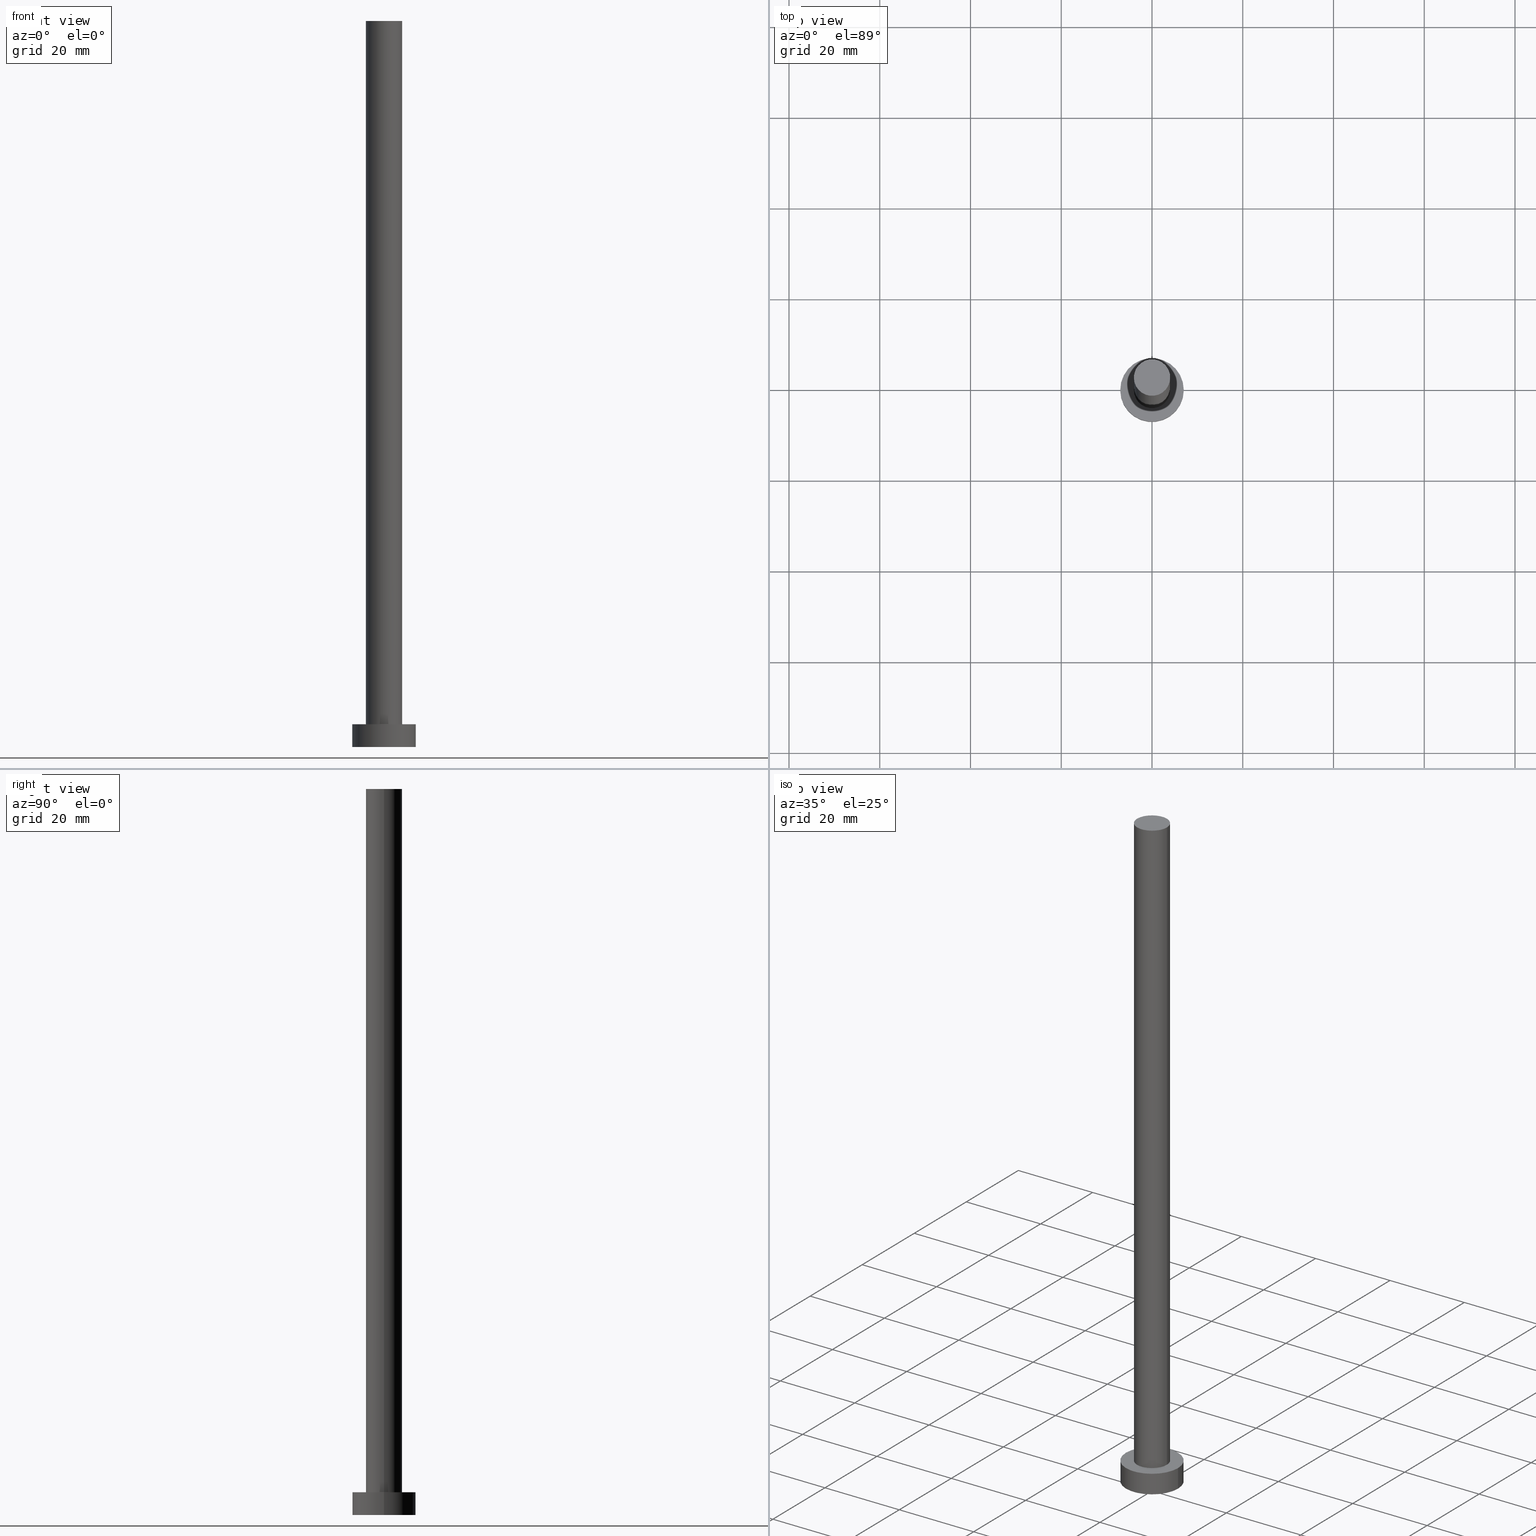
[diagram: canonical four-view strip — front | top / right | iso, engineering-drawing reading convention]
A machine part, canonical four-view strip (front | top / right | iso — engineering-drawing reading convention). The complete STEP part file that produces these views, byte-faithful:
ISO-10303-21;
HEADER;
FILE_DESCRIPTION (( 'STEP AP203' ),
    '1' );
FILE_NAME ('5fa9.STEP',
    '2023-02-13T13:33:21',
    ( '' ),
    ( '' ),
    'SwSTEP 2.0',
    'SolidWorks 2019',
    '' );
FILE_SCHEMA (( 'CONFIG_CONTROL_DESIGN' ));
ENDSEC;

DATA;
#1 = EDGE_CURVE ( 'NONE', #162, #129, #86, .T. ) ;
#2 = PERSON_AND_ORGANIZATION_ROLE ( 'design_owner' ) ;
#3 = ORIENTED_EDGE ( 'NONE', *, *, #160, .F. ) ;
#4 = ORIENTED_EDGE ( 'NONE', *, *, #1, .T. ) ;
#5 = CYLINDRICAL_SURFACE ( 'NONE', #12, 7.000000000000000000 ) ;
#6 = DIRECTION ( 'NONE',  ( 0.000000000000000000, 0.000000000000000000, 1.000000000000000000 ) ) ;
#7 = COORDINATED_UNIVERSAL_TIME_OFFSET ( 1, 0, .AHEAD. ) ;
#8 = DIRECTION ( 'NONE',  ( 0.000000000000000000, 0.000000000000000000, 1.000000000000000000 ) ) ;
#9 = EDGE_CURVE ( 'NONE', #182, #226, #143, .T. ) ;
#10 = DIRECTION ( 'NONE',  ( -1.000000000000000000, 0.000000000000000000, 0.000000000000000000 ) ) ;
#11 = PLANE ( 'NONE',  #140 ) ;
#12 = AXIS2_PLACEMENT_3D ( 'NONE', #90, #28, #10 ) ;
#13 = ORGANIZATION ( 'NEUR�EN�', 'NEUR�EN�', '' ) ;
#14 = ADVANCED_FACE ( 'NONE', ( #183 ), #5, .T. ) ;
#15 = CARTESIAN_POINT ( 'NONE',  ( -7.000000000000000000, 0.000000000000000000, 5.000000000000000000 ) ) ;
#16 = ADVANCED_FACE ( 'NONE', ( #167 ), #116, .T. ) ;
#17 = PERSON_AND_ORGANIZATION ( #99, #13 ) ;
#18 = AXIS2_PLACEMENT_3D ( 'NONE', #164, #6, #91 ) ;
#19 = EDGE_CURVE ( 'NONE', #226, #199, #69, .T. ) ;
#20 = ORIENTED_EDGE ( 'NONE', *, *, #19, .T. ) ;
#21 = ORIENTED_EDGE ( 'NONE', *, *, #172, .T. ) ;
#22 = CALENDAR_DATE ( 2023, 13, 2 ) ;
#23 = PRODUCT_DEFINITION_FORMATION_WITH_SPECIFIED_SOURCE ( 'LIBOVOLN�', '', #94, .NOT_KNOWN. ) ;
#24 = DATE_AND_TIME ( #22, #177 ) ;
#25 = ORIENTED_EDGE ( 'NONE', *, *, #178, .F. ) ;
#26 = EDGE_LOOP ( 'NONE', ( #131, #127, #66, #67 ) ) ;
#27 = APPROVAL_PERSON_ORGANIZATION ( #68, #191, #128 ) ;
#28 = DIRECTION ( 'NONE',  ( -0.000000000000000000, -0.000000000000000000, -1.000000000000000000 ) ) ;
#29 =( NAMED_UNIT ( * ) PLANE_ANGLE_UNIT ( ) SI_UNIT ( $, .RADIAN. ) );
#30 = DIRECTION ( 'NONE',  ( 1.000000000000000000, 0.000000000000000000, 0.000000000000000000 ) ) ;
#31 = DIRECTION ( 'NONE',  ( -0.000000000000000000, -0.000000000000000000, -1.000000000000000000 ) ) ;
#32 = FACE_OUTER_BOUND ( 'NONE', #243, .T. ) ;
#33 = LOCAL_TIME ( 14, 33, 21.00000000000000000, #122 ) ;
#34 = CARTESIAN_POINT ( 'NONE',  ( 0.000000000000000000, 0.000000000000000000, 160.0000000000000000 ) ) ;
#35 = EDGE_CURVE ( 'NONE', #129, #162, #40, .T. ) ;
#36 = CC_DESIGN_PERSON_AND_ORGANIZATION_ASSIGNMENT ( #17, #253, ( #23 ) ) ;
#37 = CC_DESIGN_PERSON_AND_ORGANIZATION_ASSIGNMENT ( #85, #237, ( #51 ) ) ;
#38 = ORIENTED_EDGE ( 'NONE', *, *, #101, .F. ) ;
#39 = APPLICATION_PROTOCOL_DEFINITION ( 'international standard', 'config_control_design', 1994, #60 ) ;
#40 = CIRCLE ( 'NONE', #198, 7.000000000000000000 ) ;
#41 = EDGE_LOOP ( 'NONE', ( #107, #196 ) ) ;
#42 = APPROVAL ( #255, 'NEUR�EN�' ) ;
#43 = ORIENTED_EDGE ( 'NONE', *, *, #251, .T. ) ;
#44 = APPROVAL_DATE_TIME ( #24, #191 ) ;
#45 = ORIENTED_EDGE ( 'NONE', *, *, #214, .T. ) ;
#46 = DIRECTION ( 'NONE',  ( 1.000000000000000000, 0.000000000000000000, 0.000000000000000000 ) ) ;
#47 = EDGE_CURVE ( 'NONE', #64, #199, #95, .T. ) ;
#48 = DIRECTION ( 'NONE',  ( -1.000000000000000000, 0.000000000000000000, 0.000000000000000000 ) ) ;
#49 = DIRECTION ( 'NONE',  ( 1.000000000000000000, 0.000000000000000000, -0.000000000000000000 ) ) ;
#50 = AXIS2_PLACEMENT_3D ( 'NONE', #147, #204, #118 ) ;
#51 = SECURITY_CLASSIFICATION ( '', '', #217 ) ;
#52 = CYLINDRICAL_SURFACE ( 'NONE', #124, 7.000000000000000000 ) ;
#53 = DATE_AND_TIME ( #165, #80 ) ;
#54 = CARTESIAN_POINT ( 'NONE',  ( 0.000000000000000000, 0.000000000000000000, 5.000000000000000000 ) ) ;
#55 = CYLINDRICAL_SURFACE ( 'NONE', #63, 4.000000000000000000 ) ;
#56 = MANIFOLD_SOLID_BREP ( 'P�idat vysunut�m3', #169 ) ;
#57 = CIRCLE ( 'NONE', #212, 4.000000000000000000 ) ;
#58 = CARTESIAN_POINT ( 'NONE',  ( 7.000000000000000000, 8.572527594031473190E-16, 0.000000000000000000 ) ) ;
#59 = APPROVAL_DATE_TIME ( #175, #146 ) ;
#60 = APPLICATION_CONTEXT ( 'configuration controlled 3d designs of mechanical parts and assemblies' ) ;
#61 = LOCAL_TIME ( 14, 33, 21.00000000000000000, #123 ) ;
#62 = PERSON_AND_ORGANIZATION ( #99, #13 ) ;
#63 = AXIS2_PLACEMENT_3D ( 'NONE', #34, #233, #234 ) ;
#64 = VERTEX_POINT ( 'NONE', #163 ) ;
#65 = APPROVAL_STATUS ( 'not_yet_approved' ) ;
#66 = ORIENTED_EDGE ( 'NONE', *, *, #105, .T. ) ;
#67 = ORIENTED_EDGE ( 'NONE', *, *, #35, .T. ) ;
#68 = PERSON_AND_ORGANIZATION ( #99, #13 ) ;
#69 = CIRCLE ( 'NONE', #50, 4.000000000000000000 ) ;
#70 = LOCAL_TIME ( 14, 33, 21.00000000000000000, #82 ) ;
#71 = ORIENTED_EDGE ( 'NONE', *, *, #178, .T. ) ;
#72 = LINE ( 'NONE', #208, #134 ) ;
#73 = DIRECTION ( 'NONE',  ( 1.000000000000000000, 0.000000000000000000, -0.000000000000000000 ) ) ;
#74 = DIRECTION ( 'NONE',  ( -1.000000000000000000, 0.000000000000000000, 0.000000000000000000 ) ) ;
#75 = FACE_OUTER_BOUND ( 'NONE', #126, .T. ) ;
#76 = DIRECTION ( 'NONE',  ( 1.000000000000000000, 0.000000000000000000, -0.000000000000000000 ) ) ;
#77 = DIRECTION ( 'NONE',  ( 1.000000000000000000, 0.000000000000000000, 0.000000000000000000 ) ) ;
#78 = FACE_BOUND ( 'NONE', #220, .T. ) ;
#79 = APPROVAL_DATE_TIME ( #218, #42 ) ;
#80 = LOCAL_TIME ( 14, 33, 21.00000000000000000, #7 ) ;
#81 = CARTESIAN_POINT ( 'NONE',  ( -7.000000000000000000, 0.000000000000000000, 0.000000000000000000 ) ) ;
#82 = COORDINATED_UNIVERSAL_TIME_OFFSET ( 1, 0, .AHEAD. ) ;
#83 = ADVANCED_FACE ( 'NONE', ( #75 ), #245, .T. ) ;
#84 = VECTOR ( 'NONE', #201, 1000.000000000000000 ) ;
#85 = PERSON_AND_ORGANIZATION ( #99, #13 ) ;
#86 = CIRCLE ( 'NONE', #203, 7.000000000000000000 ) ;
#87 = APPROVAL_ROLE ( '' ) ;
#88 = ORIENTED_EDGE ( 'NONE', *, *, #160, .T. ) ;
#89 = DIRECTION ( 'NONE',  ( 1.000000000000000000, 0.000000000000000000, 0.000000000000000000 ) ) ;
#90 = CARTESIAN_POINT ( 'NONE',  ( 0.000000000000000000, 0.000000000000000000, 5.000000000000000000 ) ) ;
#91 = DIRECTION ( 'NONE',  ( 1.000000000000000000, 0.000000000000000000, 0.000000000000000000 ) ) ;
#92 = ADVANCED_FACE ( 'NONE', ( #151 ), #52, .T. ) ;
#93 = CARTESIAN_POINT ( 'NONE',  ( 0.000000000000000000, 0.000000000000000000, 160.0000000000000000 ) ) ;
#94 = PRODUCT ( '5fa9', '5fa9', '', ( #157 ) ) ;
#95 = LINE ( 'NONE', #231, #133 ) ;
#96 = CARTESIAN_POINT ( 'NONE',  ( -4.000000000000000000, 0.000000000000000000, 5.000000000000000000 ) ) ;
#97 = DIRECTION ( 'NONE',  ( 0.000000000000000000, 0.000000000000000000, 1.000000000000000000 ) ) ;
#98 = AXIS2_PLACEMENT_3D ( 'NONE', #188, #227, #48 ) ;
#99 = PERSON ( 'NEUR�EN�', 'NEUR�EN�', 'NEUR�EN�', ('NEUR�EN�'), ('NEUR�EN�'), ('NEUR�EN�') ) ;
#100 = VECTOR ( 'NONE', #209, 1000.000000000000000 ) ;
#101 = EDGE_CURVE ( 'NONE', #64, #182, #228, .T. ) ;
#102 = PERSON_AND_ORGANIZATION ( #99, #13 ) ;
#103 = ADVANCED_FACE ( 'NONE', ( #32 ), #55, .T. ) ;
#104 = DATE_TIME_ROLE ( 'classification_date' ) ;
#105 = EDGE_CURVE ( 'NONE', #109, #129, #246, .T. ) ;
#106 = EDGE_LOOP ( 'NONE', ( #45, #43 ) ) ;
#107 = ORIENTED_EDGE ( 'NONE', *, *, #35, .F. ) ;
#108 = AXIS2_PLACEMENT_3D ( 'NONE', #54, #250, #77 ) ;
#109 = VERTEX_POINT ( 'NONE', #15 ) ;
#110 = PERSON_AND_ORGANIZATION ( #99, #13 ) ;
#111 = DIRECTION ( 'NONE',  ( 0.000000000000000000, 0.000000000000000000, 1.000000000000000000 ) ) ;
#112 = DIRECTION ( 'NONE',  ( 0.000000000000000000, 0.000000000000000000, 1.000000000000000000 ) ) ;
#113 = ORIENTED_EDGE ( 'NONE', *, *, #251, .F. ) ;
#114 = PERSON_AND_ORGANIZATION_ROLE ( 'creator' ) ;
#115 =( GEOMETRIC_REPRESENTATION_CONTEXT ( 3 ) GLOBAL_UNCERTAINTY_ASSIGNED_CONTEXT ( ( #232 ) ) GLOBAL_UNIT_ASSIGNED_CONTEXT ( ( #205, #29, #213 ) ) REPRESENTATION_CONTEXT ( 'NONE', 'WORKASPACE' ) );
#116 = CYLINDRICAL_SURFACE ( 'NONE', #98, 4.000000000000000000 ) ;
#117 = CARTESIAN_POINT ( 'NONE',  ( 0.000000000000000000, 0.000000000000000000, 5.000000000000000000 ) ) ;
#118 = DIRECTION ( 'NONE',  ( 1.000000000000000000, 0.000000000000000000, 0.000000000000000000 ) ) ;
#119 = FACE_OUTER_BOUND ( 'NONE', #106, .T. ) ;
#120 = AXIS2_PLACEMENT_3D ( 'NONE', #93, #97, #73 ) ;
#121 = ADVANCED_FACE ( 'NONE', ( #153 ), #138, .F. ) ;
#122 = COORDINATED_UNIVERSAL_TIME_OFFSET ( 1, 0, .AHEAD. ) ;
#123 = COORDINATED_UNIVERSAL_TIME_OFFSET ( 1, 0, .AHEAD. ) ;
#124 = AXIS2_PLACEMENT_3D ( 'NONE', #189, #135, #74 ) ;
#125 = APPLICATION_PROTOCOL_DEFINITION ( 'international standard', 'config_control_design', 1994, #247 ) ;
#126 = EDGE_LOOP ( 'NONE', ( #185, #71 ) ) ;
#127 = ORIENTED_EDGE ( 'NONE', *, *, #214, .F. ) ;
#128 = APPROVAL_ROLE ( '' ) ;
#129 = VERTEX_POINT ( 'NONE', #81 ) ;
#130 = CARTESIAN_POINT ( 'NONE',  ( 4.000000000000000000, 4.898587196589412829E-16, 160.0000000000000000 ) ) ;
#131 = ORIENTED_EDGE ( 'NONE', *, *, #172, .F. ) ;
#132 = DIRECTION ( 'NONE',  ( 0.000000000000000000, 0.000000000000000000, 1.000000000000000000 ) ) ;
#133 = VECTOR ( 'NONE', #168, 1000.000000000000000 ) ;
#134 = VECTOR ( 'NONE', #31, 1000.000000000000000 ) ;
#135 = DIRECTION ( 'NONE',  ( -0.000000000000000000, -0.000000000000000000, -1.000000000000000000 ) ) ;
#136 = CARTESIAN_POINT ( 'NONE',  ( -7.000000000000000000, 0.000000000000000000, 5.000000000000000000 ) ) ;
#137 = ADVANCED_FACE ( 'NONE', ( #78, #119 ), #11, .T. ) ;
#138 = PLANE ( 'NONE',  #239 ) ;
#139 = PERSON_AND_ORGANIZATION ( #99, #13 ) ;
#140 = AXIS2_PLACEMENT_3D ( 'NONE', #230, #190, #49 ) ;
#141 = VERTEX_POINT ( 'NONE', #170 ) ;
#142 = APPROVAL_STATUS ( 'not_yet_approved' ) ;
#143 = LINE ( 'NONE', #130, #84 ) ;
#144 = AXIS2_PLACEMENT_3D ( 'NONE', #117, #132, #186 ) ;
#145 = PERSON_AND_ORGANIZATION ( #99, #13 ) ;
#146 = APPROVAL ( #65, 'NEUR�EN�' ) ;
#147 = CARTESIAN_POINT ( 'NONE',  ( 0.000000000000000000, 0.000000000000000000, 5.000000000000000000 ) ) ;
#148 = CC_DESIGN_PERSON_AND_ORGANIZATION_ASSIGNMENT ( #102, #176, ( #23 ) ) ;
#149 = CARTESIAN_POINT ( 'NONE',  ( 0.000000000000000000, 0.000000000000000000, 160.0000000000000000 ) ) ;
#150 = APPROVAL_PERSON_ORGANIZATION ( #139, #42, #87 ) ;
#151 = FACE_OUTER_BOUND ( 'NONE', #26, .T. ) ;
#152 = CARTESIAN_POINT ( 'NONE',  ( 4.000000000000000000, 4.898587196589412829E-16, 160.0000000000000000 ) ) ;
#153 = FACE_OUTER_BOUND ( 'NONE', #41, .T. ) ;
#154 = DIRECTION ( 'NONE',  ( 0.000000000000000000, 0.000000000000000000, 1.000000000000000000 ) ) ;
#155 = CC_DESIGN_DATE_AND_TIME_ASSIGNMENT ( #173, #104, ( #51 ) ) ;
#156 = CALENDAR_DATE ( 2023, 13, 2 ) ;
#157 = MECHANICAL_CONTEXT ( 'NONE', #247, 'mechanical' ) ;
#158 = CC_DESIGN_APPROVAL ( #146, ( #23 ) ) ;
#159 = EDGE_LOOP ( 'NONE', ( #113, #21, #4, #197 ) ) ;
#160 = EDGE_CURVE ( 'NONE', #199, #226, #224, .T. ) ;
#161 = DIRECTION ( 'NONE',  ( 0.000000000000000000, 0.000000000000000000, 1.000000000000000000 ) ) ;
#162 = VERTEX_POINT ( 'NONE', #58 ) ;
#163 = CARTESIAN_POINT ( 'NONE',  ( -4.000000000000000000, 0.000000000000000000, 160.0000000000000000 ) ) ;
#164 = CARTESIAN_POINT ( 'NONE',  ( 0.000000000000000000, 0.000000000000000000, 5.000000000000000000 ) ) ;
#165 = CALENDAR_DATE ( 2023, 13, 2 ) ;
#166 = CC_DESIGN_DATE_AND_TIME_ASSIGNMENT ( #53, #238, ( #187 ) ) ;
#167 = FACE_OUTER_BOUND ( 'NONE', #179, .T. ) ;
#168 = DIRECTION ( 'NONE',  ( -0.000000000000000000, -0.000000000000000000, -1.000000000000000000 ) ) ;
#169 = CLOSED_SHELL ( 'NONE', ( #103, #14, #92, #137, #121, #16, #83 ) ) ;
#170 = CARTESIAN_POINT ( 'NONE',  ( 7.000000000000000000, 8.572527594031473190E-16, 5.000000000000000000 ) ) ;
#171 = CC_DESIGN_APPROVAL ( #42, ( #51 ) ) ;
#172 = EDGE_CURVE ( 'NONE', #141, #162, #72, .T. ) ;
#173 = DATE_AND_TIME ( #195, #70 ) ;
#174 = APPROVAL_PERSON_ORGANIZATION ( #62, #146, #221 ) ;
#175 = DATE_AND_TIME ( #194, #33 ) ;
#176 = PERSON_AND_ORGANIZATION_ROLE ( 'creator' ) ;
#177 = LOCAL_TIME ( 14, 33, 21.00000000000000000, #200 ) ;
#178 = EDGE_CURVE ( 'NONE', #182, #64, #57, .T. ) ;
#179 = EDGE_LOOP ( 'NONE', ( #180, #38, #242, #88 ) ) ;
#180 = ORIENTED_EDGE ( 'NONE', *, *, #9, .F. ) ;
#181 = DIRECTION ( 'NONE',  ( 1.000000000000000000, 0.000000000000000000, 0.000000000000000000 ) ) ;
#182 = VERTEX_POINT ( 'NONE', #152 ) ;
#183 = FACE_OUTER_BOUND ( 'NONE', #159, .T. ) ;
#184 = CARTESIAN_POINT ( 'NONE',  ( 4.000000000000000000, 4.898587196589412829E-16, 5.000000000000000000 ) ) ;
#185 = ORIENTED_EDGE ( 'NONE', *, *, #101, .T. ) ;
#186 = DIRECTION ( 'NONE',  ( 1.000000000000000000, 0.000000000000000000, 0.000000000000000000 ) ) ;
#187 = PRODUCT_DEFINITION ( 'NEZN�M�', '', #23, #216 ) ;
#188 = CARTESIAN_POINT ( 'NONE',  ( 0.000000000000000000, 0.000000000000000000, 160.0000000000000000 ) ) ;
#189 = CARTESIAN_POINT ( 'NONE',  ( 0.000000000000000000, 0.000000000000000000, 5.000000000000000000 ) ) ;
#190 = DIRECTION ( 'NONE',  ( 0.000000000000000000, 0.000000000000000000, 1.000000000000000000 ) ) ;
#191 = APPROVAL ( #142, 'NEUR�EN�' ) ;
#192 = CARTESIAN_POINT ( 'NONE',  ( 0.000000000000000000, 0.000000000000000000, 0.000000000000000000 ) ) ;
#193 = CC_DESIGN_APPROVAL ( #191, ( #187 ) ) ;
#194 = CALENDAR_DATE ( 2023, 13, 2 ) ;
#195 = CALENDAR_DATE ( 2023, 13, 2 ) ;
#196 = ORIENTED_EDGE ( 'NONE', *, *, #1, .F. ) ;
#197 = ORIENTED_EDGE ( 'NONE', *, *, #105, .F. ) ;
#198 = AXIS2_PLACEMENT_3D ( 'NONE', #229, #8, #248 ) ;
#199 = VERTEX_POINT ( 'NONE', #96 ) ;
#200 = COORDINATED_UNIVERSAL_TIME_OFFSET ( 1, 0, .AHEAD. ) ;
#201 = DIRECTION ( 'NONE',  ( -0.000000000000000000, -0.000000000000000000, -1.000000000000000000 ) ) ;
#202 = CARTESIAN_POINT ( 'NONE',  ( 0.000000000000000000, 0.000000000000000000, 0.000000000000000000 ) ) ;
#203 = AXIS2_PLACEMENT_3D ( 'NONE', #202, #111, #89 ) ;
#204 = DIRECTION ( 'NONE',  ( 0.000000000000000000, 0.000000000000000000, 1.000000000000000000 ) ) ;
#205 =( LENGTH_UNIT ( ) NAMED_UNIT ( * ) SI_UNIT ( .MILLI., .METRE. ) );
#206 = CC_DESIGN_SECURITY_CLASSIFICATION ( #51, ( #23 ) ) ;
#207 = DIRECTION ( 'NONE',  ( 0.000000000000000000, 0.000000000000000000, 1.000000000000000000 ) ) ;
#208 = CARTESIAN_POINT ( 'NONE',  ( 7.000000000000000000, 8.572527594031473190E-16, 5.000000000000000000 ) ) ;
#209 = DIRECTION ( 'NONE',  ( -0.000000000000000000, -0.000000000000000000, -1.000000000000000000 ) ) ;
#210 = PRODUCT_DEFINITION_SHAPE ( 'NONE', 'NONE',  #187 ) ;
#211 = CARTESIAN_POINT ( 'NONE',  ( 0.000000000000000000, 0.000000000000000000, 160.0000000000000000 ) ) ;
#212 = AXIS2_PLACEMENT_3D ( 'NONE', #211, #112, #46 ) ;
#213 =( NAMED_UNIT ( * ) SI_UNIT ( $, .STERADIAN. ) SOLID_ANGLE_UNIT ( ) );
#214 = EDGE_CURVE ( 'NONE', #109, #141, #252, .T. ) ;
#215 = AXIS2_PLACEMENT_3D ( 'NONE', #149, #207, #30 ) ;
#216 = DESIGN_CONTEXT ( 'detailed design', #60, 'design' ) ;
#217 = SECURITY_CLASSIFICATION_LEVEL ( 'unclassified' ) ;
#218 = DATE_AND_TIME ( #156, #61 ) ;
#219 = CC_DESIGN_PERSON_AND_ORGANIZATION_ASSIGNMENT ( #145, #114, ( #187 ) ) ;
#220 = EDGE_LOOP ( 'NONE', ( #3, #225 ) ) ;
#221 = APPROVAL_ROLE ( '' ) ;
#222 = PRODUCT_RELATED_PRODUCT_CATEGORY ( 'detail', '', ( #94 ) ) ;
#223 = ORIENTED_EDGE ( 'NONE', *, *, #9, .T. ) ;
#224 = CIRCLE ( 'NONE', #108, 4.000000000000000000 ) ;
#225 = ORIENTED_EDGE ( 'NONE', *, *, #19, .F. ) ;
#226 = VERTEX_POINT ( 'NONE', #184 ) ;
#227 = DIRECTION ( 'NONE',  ( -0.000000000000000000, -0.000000000000000000, -1.000000000000000000 ) ) ;
#228 = CIRCLE ( 'NONE', #215, 4.000000000000000000 ) ;
#229 = CARTESIAN_POINT ( 'NONE',  ( 0.000000000000000000, 0.000000000000000000, 0.000000000000000000 ) ) ;
#230 = CARTESIAN_POINT ( 'NONE',  ( 0.000000000000000000, 0.000000000000000000, 5.000000000000000000 ) ) ;
#231 = CARTESIAN_POINT ( 'NONE',  ( -4.000000000000000000, 0.000000000000000000, 160.0000000000000000 ) ) ;
#232 = UNCERTAINTY_MEASURE_WITH_UNIT (LENGTH_MEASURE( 1.000000000000000082E-05 ), #205, 'distance_accuracy_value', 'NONE');
#233 = DIRECTION ( 'NONE',  ( -0.000000000000000000, -0.000000000000000000, -1.000000000000000000 ) ) ;
#234 = DIRECTION ( 'NONE',  ( -1.000000000000000000, 0.000000000000000000, 0.000000000000000000 ) ) ;
#235 = SHAPE_DEFINITION_REPRESENTATION ( #210, #236 ) ;
#236 = ADVANCED_BREP_SHAPE_REPRESENTATION ( '5fa9', ( #56, #244 ), #115 ) ;
#237 = PERSON_AND_ORGANIZATION_ROLE ( 'classification_officer' ) ;
#238 = DATE_TIME_ROLE ( 'creation_date' ) ;
#239 = AXIS2_PLACEMENT_3D ( 'NONE', #192, #154, #76 ) ;
#240 = ORIENTED_EDGE ( 'NONE', *, *, #47, .F. ) ;
#241 = CARTESIAN_POINT ( 'NONE',  ( 0.000000000000000000, 0.000000000000000000, 0.000000000000000000 ) ) ;
#242 = ORIENTED_EDGE ( 'NONE', *, *, #47, .T. ) ;
#243 = EDGE_LOOP ( 'NONE', ( #25, #223, #20, #240 ) ) ;
#244 = AXIS2_PLACEMENT_3D ( 'NONE', #241, #161, #181 ) ;
#245 = PLANE ( 'NONE',  #120 ) ;
#246 = LINE ( 'NONE', #136, #100 ) ;
#247 = APPLICATION_CONTEXT ( 'configuration controlled 3d designs of mechanical parts and assemblies' ) ;
#248 = DIRECTION ( 'NONE',  ( 1.000000000000000000, 0.000000000000000000, 0.000000000000000000 ) ) ;
#249 = CIRCLE ( 'NONE', #18, 7.000000000000000000 ) ;
#250 = DIRECTION ( 'NONE',  ( 0.000000000000000000, 0.000000000000000000, 1.000000000000000000 ) ) ;
#251 = EDGE_CURVE ( 'NONE', #141, #109, #249, .T. ) ;
#252 = CIRCLE ( 'NONE', #144, 7.000000000000000000 ) ;
#253 = PERSON_AND_ORGANIZATION_ROLE ( 'design_supplier' ) ;
#254 = CC_DESIGN_PERSON_AND_ORGANIZATION_ASSIGNMENT ( #110, #2, ( #94 ) ) ;
#255 = APPROVAL_STATUS ( 'not_yet_approved' ) ;
ENDSEC;
END-ISO-10303-21;
